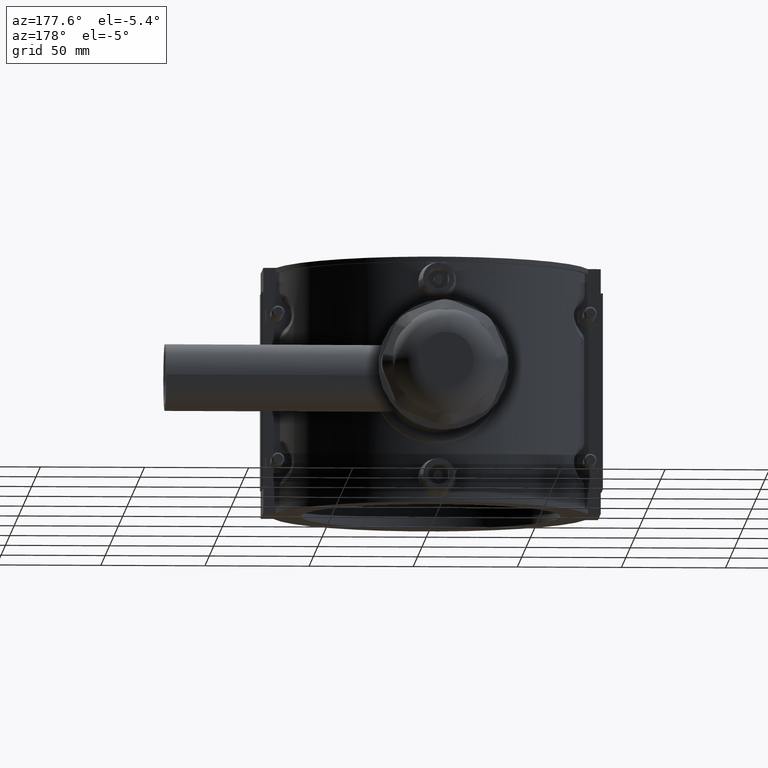
[diagram: clean part render]
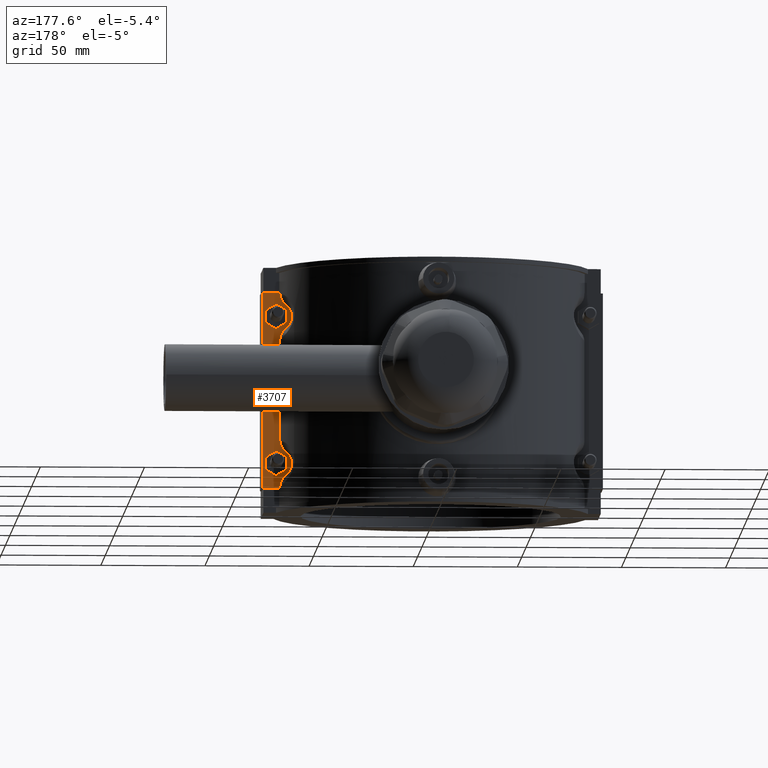
[diagram: same view with one face highlighted and labeled with its STEP entity id]
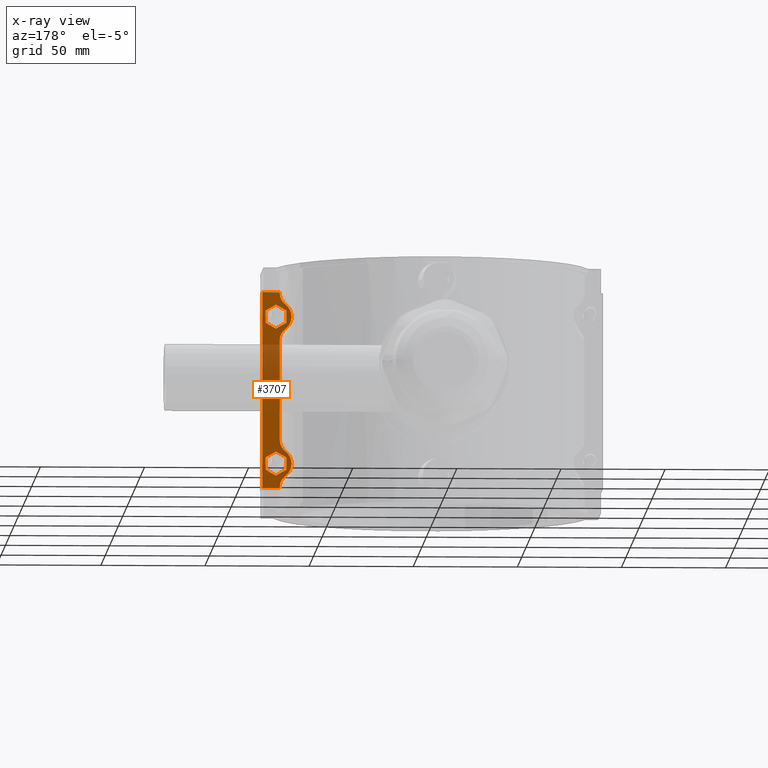
[diagram: x-ray of the same camera — body ghosted, the highlighted face saturated]
A machine part, auxiliary view. The second image highlights one B-rep face of the part: STEP entity #3707.
The next image is the same camera in x-ray: the body ghosted, the highlighted face saturated — about 36% of this face is hidden behind the body in this view.
In plain terms, the highlighted planar face has unit normal (0, 1, 0).
Its self-contained STEP definition (entity closure, byte-faithful):
#115=LINE('',#6190,#414);
#116=LINE('',#6207,#415);
#117=LINE('',#6224,#416);
#200=LINE('',#7133,#499);
#201=LINE('',#7135,#500);
#202=LINE('',#7174,#501);
#203=LINE('',#7177,#502);
#204=LINE('',#7179,#503);
#205=LINE('',#7181,#504);
#206=LINE('',#7183,#505);
#207=LINE('',#7185,#506);
#208=LINE('',#7186,#507);
#209=LINE('',#7189,#508);
#210=LINE('',#7191,#509);
#211=LINE('',#7193,#510);
#212=LINE('',#7195,#511);
#213=LINE('',#7197,#512);
#214=LINE('',#7198,#513);
#414=VECTOR('',#4421,0.58859172471041);
#415=VECTOR('',#4422,48.3771834494208);
#416=VECTOR('',#4423,0.588591724710401);
#499=VECTOR('',#4602,94.4);
#500=VECTOR('',#4605,8.36581254297003);
#501=VECTOR('',#4610,8.36581254297003);
#502=VECTOR('',#4611,5.77350269189625);
#503=VECTOR('',#4612,5.77350269189626);
#504=VECTOR('',#4613,5.77350269189625);
#505=VECTOR('',#4614,5.77350269189625);
#506=VECTOR('',#4615,5.77350269189625);
#507=VECTOR('',#4616,5.77350269189626);
#508=VECTOR('',#4617,5.77350269189627);
#509=VECTOR('',#4618,5.77350269189624);
#510=VECTOR('',#4619,5.77350269189626);
#511=VECTOR('',#4620,5.77350269189626);
#512=VECTOR('',#4621,5.77350269189626);
#513=VECTOR('',#4622,5.77350269189626);
#706=PLANE('',#3975);
#843=CIRCLE('',#3976,7.5);
#844=CIRCLE('',#3977,7.5);
#922=FACE_BOUND('',#1300,.T.);
#923=FACE_BOUND('',#1301,.T.);
#1058=FACE_OUTER_BOUND('',#1299,.T.);
#1299=EDGE_LOOP('',(#2962,#2963,#2964,#2965,#2966,#2967,#2968,#2969,#2970,
#2971,#2972,#2973));
#1300=EDGE_LOOP('',(#2974,#2975,#2976,#2977,#2978,#2979));
#1301=EDGE_LOOP('',(#2980,#2981,#2982,#2983,#2984,#2985));
#1531=B_SPLINE_CURVE_WITH_KNOTS('',3,(#7137,#7138,#7139,#7140,#7141,#7142,
#7143,#7144),.UNSPECIFIED.,.F.,.F.,(4,2,2,4),(-0.608600051633255,-0.42727554187033,
-0.243246402726557,0.),.UNSPECIFIED.);
#1532=B_SPLINE_CURVE_WITH_KNOTS('',3,(#7147,#7148,#7149,#7150,#7151,#7152,
#7153,#7154),.UNSPECIFIED.,.F.,.F.,(4,2,2,4),(-0.609244250859844,-0.438868636799252,
-0.269172934624271,0.),.UNSPECIFIED.);
#1533=B_SPLINE_CURVE_WITH_KNOTS('',3,(#7156,#7157,#7158,#7159,#7160,#7161,
#7162,#7163),.UNSPECIFIED.,.F.,.F.,(4,2,2,4),(-0.608600051633299,-0.427275541870061,
-0.243246402726071,0.),.UNSPECIFIED.);
#1534=B_SPLINE_CURVE_WITH_KNOTS('',3,(#7166,#7167,#7168,#7169,#7170,#7171,
#7172,#7173),.UNSPECIFIED.,.F.,.F.,(4,2,2,4),(-0.609244250859876,-0.438868636799044,
-0.26917293462429,0.),.UNSPECIFIED.);
#1679=VERTEX_POINT('',#6187);
#1680=VERTEX_POINT('',#6189);
#1681=VERTEX_POINT('',#6191);
#1682=VERTEX_POINT('',#6206);
#1683=VERTEX_POINT('',#6208);
#1684=VERTEX_POINT('',#6223);
#1770=VERTEX_POINT('',#7126);
#1773=VERTEX_POINT('',#7131);
#1774=VERTEX_POINT('',#7136);
#1775=VERTEX_POINT('',#7145);
#1776=VERTEX_POINT('',#7155);
#1777=VERTEX_POINT('',#7164);
#1778=VERTEX_POINT('',#7175);
#1779=VERTEX_POINT('',#7176);
#1780=VERTEX_POINT('',#7178);
#1781=VERTEX_POINT('',#7180);
#1782=VERTEX_POINT('',#7182);
#1783=VERTEX_POINT('',#7184);
#1784=VERTEX_POINT('',#7187);
#1785=VERTEX_POINT('',#7188);
#1786=VERTEX_POINT('',#7190);
#1787=VERTEX_POINT('',#7192);
#1788=VERTEX_POINT('',#7194);
#1789=VERTEX_POINT('',#7196);
#2089=EDGE_CURVE('',#1679,#1680,#115,.T.);
#2091=EDGE_CURVE('',#1681,#1682,#116,.T.);
#2093=EDGE_CURVE('',#1683,#1684,#117,.T.);
#2214=EDGE_CURVE('',#1773,#1770,#200,.T.);
#2215=EDGE_CURVE('',#1684,#1773,#201,.T.);
#2216=EDGE_CURVE('',#1774,#1683,#1531,.T.);
#2217=EDGE_CURVE('',#1775,#1774,#843,.T.);
#2218=EDGE_CURVE('',#1682,#1775,#1532,.T.);
#2219=EDGE_CURVE('',#1776,#1681,#1533,.T.);
#2220=EDGE_CURVE('',#1777,#1776,#844,.T.);
#2221=EDGE_CURVE('',#1680,#1777,#1534,.T.);
#2222=EDGE_CURVE('',#1770,#1679,#202,.T.);
#2223=EDGE_CURVE('',#1778,#1779,#203,.T.);
#2224=EDGE_CURVE('',#1780,#1778,#204,.T.);
#2225=EDGE_CURVE('',#1781,#1780,#205,.T.);
#2226=EDGE_CURVE('',#1782,#1781,#206,.T.);
#2227=EDGE_CURVE('',#1783,#1782,#207,.T.);
#2228=EDGE_CURVE('',#1779,#1783,#208,.T.);
#2229=EDGE_CURVE('',#1784,#1785,#209,.T.);
#2230=EDGE_CURVE('',#1786,#1784,#210,.T.);
#2231=EDGE_CURVE('',#1787,#1786,#211,.T.);
#2232=EDGE_CURVE('',#1788,#1787,#212,.T.);
#2233=EDGE_CURVE('',#1789,#1788,#213,.T.);
#2234=EDGE_CURVE('',#1785,#1789,#214,.T.);
#2962=ORIENTED_EDGE('',*,*,#2214,.F.);
#2963=ORIENTED_EDGE('',*,*,#2215,.F.);
#2964=ORIENTED_EDGE('',*,*,#2093,.F.);
#2965=ORIENTED_EDGE('',*,*,#2216,.F.);
#2966=ORIENTED_EDGE('',*,*,#2217,.F.);
#2967=ORIENTED_EDGE('',*,*,#2218,.F.);
#2968=ORIENTED_EDGE('',*,*,#2091,.F.);
#2969=ORIENTED_EDGE('',*,*,#2219,.F.);
#2970=ORIENTED_EDGE('',*,*,#2220,.F.);
#2971=ORIENTED_EDGE('',*,*,#2221,.F.);
#2972=ORIENTED_EDGE('',*,*,#2089,.F.);
#2973=ORIENTED_EDGE('',*,*,#2222,.F.);
#2974=ORIENTED_EDGE('',*,*,#2223,.F.);
#2975=ORIENTED_EDGE('',*,*,#2224,.F.);
#2976=ORIENTED_EDGE('',*,*,#2225,.F.);
#2977=ORIENTED_EDGE('',*,*,#2226,.F.);
#2978=ORIENTED_EDGE('',*,*,#2227,.F.);
#2979=ORIENTED_EDGE('',*,*,#2228,.F.);
#2980=ORIENTED_EDGE('',*,*,#2229,.F.);
#2981=ORIENTED_EDGE('',*,*,#2230,.F.);
#2982=ORIENTED_EDGE('',*,*,#2231,.F.);
#2983=ORIENTED_EDGE('',*,*,#2232,.F.);
#2984=ORIENTED_EDGE('',*,*,#2233,.F.);
#2985=ORIENTED_EDGE('',*,*,#2234,.F.);
#3707=ADVANCED_FACE('',(#1058,#922,#923),#706,.T.);
#3975=AXIS2_PLACEMENT_3D('',#7134,#4603,#4604);
#3976=AXIS2_PLACEMENT_3D('',#7146,#4606,#4607);
#3977=AXIS2_PLACEMENT_3D('',#7165,#4608,#4609);
#4421=DIRECTION('',(0.,0.,-1.));
#4422=DIRECTION('',(0.,0.,-1.));
#4423=DIRECTION('',(0.,0.,-1.));
#4602=DIRECTION('',(0.,0.,1.));
#4603=DIRECTION('center_axis',(0.,1.,0.));
#4604=DIRECTION('ref_axis',(-1.,0.,0.));
#4605=DIRECTION('',(1.,0.,0.));
#4606=DIRECTION('center_axis',(0.,-1.,0.));
#4607=DIRECTION('ref_axis',(-1.,0.,0.));
#4608=DIRECTION('center_axis',(0.,-1.,0.));
#4609=DIRECTION('ref_axis',(-1.,0.,0.));
#4610=DIRECTION('',(-1.,0.,0.));
#4611=DIRECTION('',(-0.866025403784439,0.,-0.5));
#4612=DIRECTION('',(0.,0.,-1.));
#4613=DIRECTION('',(0.866025403784439,0.,-0.499999999999999));
#4614=DIRECTION('',(0.866025403784439,0.,0.5));
#4615=DIRECTION('',(0.,0.,1.));
#4616=DIRECTION('',(-0.866025403784438,0.,0.5));
#4617=DIRECTION('',(-0.866025403784439,0.,0.499999999999999));
#4618=DIRECTION('',(-0.866025403784438,0.,-0.500000000000002));
#4619=DIRECTION('',(0.,0.,-1.));
#4620=DIRECTION('',(0.866025403784438,0.,-0.5));
#4621=DIRECTION('',(0.866025403784438,0.,0.5));
#4622=DIRECTION('',(0.,0.,1.));
#6187=CARTESIAN_POINT('',(73.13418745703,16.6250000000001,47.2));
#6189=CARTESIAN_POINT('',(73.13418745703,16.625,46.6114082752896));
#6190=CARTESIAN_POINT('',(73.13418745703,16.6250000000001,0.));
#6191=CARTESIAN_POINT('',(73.13418745703,16.625,24.1885917247104));
#6206=CARTESIAN_POINT('',(73.13418745703,16.625,-24.1885917247104));
#6207=CARTESIAN_POINT('',(73.13418745703,16.6250000000001,0.));
#6208=CARTESIAN_POINT('',(73.13418745703,16.625,-46.6114082752896));
#6223=CARTESIAN_POINT('',(73.13418745703,16.6250000000001,-47.2));
#6224=CARTESIAN_POINT('',(73.13418745703,16.6250000000001,0.));
#7126=CARTESIAN_POINT('',(81.5,16.6250000000001,47.2));
#7131=CARTESIAN_POINT('',(81.5,16.6250000000001,-47.2));
#7133=CARTESIAN_POINT('',(81.5,16.6250000000001,0.));
#7134=CARTESIAN_POINT('Origin',(82.,16.6250000000001,0.));
#7135=CARTESIAN_POINT('',(82.,16.6250000000001,-47.2));
#7136=CARTESIAN_POINT('',(70.477968308609,16.6250000000001,-41.3834128540537));
#7137=CARTESIAN_POINT('Ctrl Pts',(70.477968308609,16.6250000000001,-41.3834128540537));
#7138=CARTESIAN_POINT('Ctrl Pts',(70.9606537887566,16.6250000000001,-41.7482078450467));
#7139=CARTESIAN_POINT('Ctrl Pts',(71.3936750093955,16.6250000000117,-42.1753881946307));
#7140=CARTESIAN_POINT('Ctrl Pts',(72.139047568449,16.6250000000117,-43.139895731918));
#7141=CARTESIAN_POINT('Ctrl Pts',(72.4465232624359,16.6250000000199,-43.6749342118244));
#7142=CARTESIAN_POINT('Ctrl Pts',(72.9761079758534,16.6250000000199,-44.9980965841789));
#7143=CARTESIAN_POINT('Ctrl Pts',(73.13418745703,16.6250000000001,-45.8005869328677));
#7144=CARTESIAN_POINT('Ctrl Pts',(73.13418745703,16.6250000000001,-46.6114082752896));
#7145=CARTESIAN_POINT('',(70.4779683086089,16.6250000000001,-29.4165871459463));
#7146=CARTESIAN_POINT('Origin',(75.,16.6250000000001,-35.4));
#7147=CARTESIAN_POINT('Ctrl Pts',(73.1341874570299,16.6250000000001,-24.1885917247104));
#7148=CARTESIAN_POINT('Ctrl Pts',(73.1341874570299,16.6250000000001,-24.7560062595778));
#7149=CARTESIAN_POINT('Ctrl Pts',(73.0567290303484,16.6249999999948,-25.3205439720582));
#7150=CARTESIAN_POINT('Ctrl Pts',(72.7560670159624,16.6249999999948,-26.4127463112054));
#7151=CARTESIAN_POINT('Ctrl Pts',(72.5348214604038,16.6250000000002,-26.9356331320741));
#7152=CARTESIAN_POINT('Ctrl Pts',(71.7983995533765,16.6250000000002,-28.1989117293406));
#7153=CARTESIAN_POINT('Ctrl Pts',(71.1937784406064,16.6250000000001,-28.8756055722416));
#7154=CARTESIAN_POINT('Ctrl Pts',(70.4779683086089,16.6250000000001,-29.4165871459463));
#7155=CARTESIAN_POINT('',(70.4779683086089,16.6250000000001,29.4165871459463));
#7156=CARTESIAN_POINT('Ctrl Pts',(70.4779683086089,16.6250000000001,29.4165871459463));
#7157=CARTESIAN_POINT('Ctrl Pts',(70.9606537887573,16.6250000000001,29.0517921549527));
#7158=CARTESIAN_POINT('Ctrl Pts',(71.3936750093969,16.6250000000117,28.6246118053679));
#7159=CARTESIAN_POINT('Ctrl Pts',(72.1390475684509,16.6250000000117,27.660104268079));
#7160=CARTESIAN_POINT('Ctrl Pts',(72.4465232624379,16.6250000000199,27.1250657881718));
#7161=CARTESIAN_POINT('Ctrl Pts',(72.976107975854,16.6250000000199,25.8019034158179));
#7162=CARTESIAN_POINT('Ctrl Pts',(73.13418745703,16.6250000000001,24.9994130671306));
#7163=CARTESIAN_POINT('Ctrl Pts',(73.13418745703,16.6250000000001,24.1885917247104));
#7164=CARTESIAN_POINT('',(70.477968308609,16.6250000000001,41.3834128540537));
#7165=CARTESIAN_POINT('Origin',(75.,16.6250000000001,35.4));
#7166=CARTESIAN_POINT('Ctrl Pts',(73.13418745703,16.6250000000001,46.6114082752896));
#7167=CARTESIAN_POINT('Ctrl Pts',(73.13418745703,16.6250000000001,46.0439937404214));
#7168=CARTESIAN_POINT('Ctrl Pts',(73.0567290303482,16.6249999999948,45.4794560279404));
#7169=CARTESIAN_POINT('Ctrl Pts',(72.7560670159619,16.6249999999948,44.3872536887934));
#7170=CARTESIAN_POINT('Ctrl Pts',(72.5348214604035,16.6250000000002,43.8643668679253));
#7171=CARTESIAN_POINT('Ctrl Pts',(71.7983995533765,16.6250000000002,42.6010882706595));
#7172=CARTESIAN_POINT('Ctrl Pts',(71.1937784406064,16.6250000000001,41.9243944277585));
#7173=CARTESIAN_POINT('Ctrl Pts',(70.477968308609,16.6250000000001,41.3834128540537));
#7174=CARTESIAN_POINT('',(82.,16.6250000000001,47.2));
#7175=CARTESIAN_POINT('',(80.,16.6250000000001,32.5132486540519));
#7176=CARTESIAN_POINT('',(75.,16.6250000000001,29.6264973081037));
#7177=CARTESIAN_POINT('',(73.7106751765077,16.6250000000001,28.8821052741876));
#7178=CARTESIAN_POINT('',(80.,16.6250000000001,38.2867513459481));
#7179=CARTESIAN_POINT('',(80.,16.6250000000001,19.1433756729741));
#7180=CARTESIAN_POINT('',(75.,16.6250000000001,41.1735026918963));
#7181=CARTESIAN_POINT('',(86.5393248234923,16.6250000000001,34.5112703987865));
#7182=CARTESIAN_POINT('',(70.,16.6250000000001,38.2867513459481));
#7183=CARTESIAN_POINT('',(66.2106751765077,16.6250000000001,36.0989836390579));
#7184=CARTESIAN_POINT('',(70.,16.6250000000001,32.5132486540519));
#7185=CARTESIAN_POINT('',(70.,16.6250000000001,16.2566243270259));
#7186=CARTESIAN_POINT('',(84.0393248234923,16.6250000000001,24.407640687968));
#7187=CARTESIAN_POINT('',(75.0000000000001,16.6250000000001,-41.1735026918963));
#7188=CARTESIAN_POINT('',(70.,16.6250000000001,-38.2867513459481));
#7189=CARTESIAN_POINT('',(68.7106751765078,16.6250000000001,-37.542359312032));
#7190=CARTESIAN_POINT('',(80.,16.6250000000001,-38.2867513459481));
#7191=CARTESIAN_POINT('',(89.0393248234923,16.6250000000001,-33.0678947258124));
#7192=CARTESIAN_POINT('',(80.,16.6250000000001,-32.5132486540519));
#7193=CARTESIAN_POINT('',(80.,16.6250000000001,-16.2566243270259));
#7194=CARTESIAN_POINT('',(75.,16.6250000000001,-29.6264973081037));
#7195=CARTESIAN_POINT('',(71.2106751765077,16.6250000000001,-27.4387296012135));
#7196=CARTESIAN_POINT('',(70.,16.6250000000001,-32.5132486540519));
#7197=CARTESIAN_POINT('',(81.5393248234923,16.6250000000001,-25.8510163609421));
#7198=CARTESIAN_POINT('',(70.,16.6250000000001,-19.1433756729741));